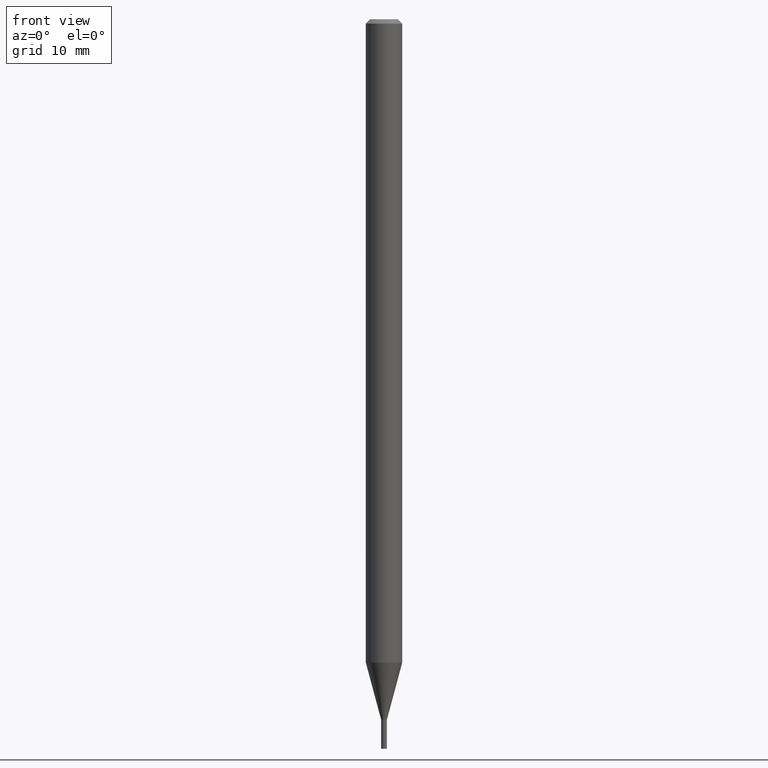
[diagram: clean part render]
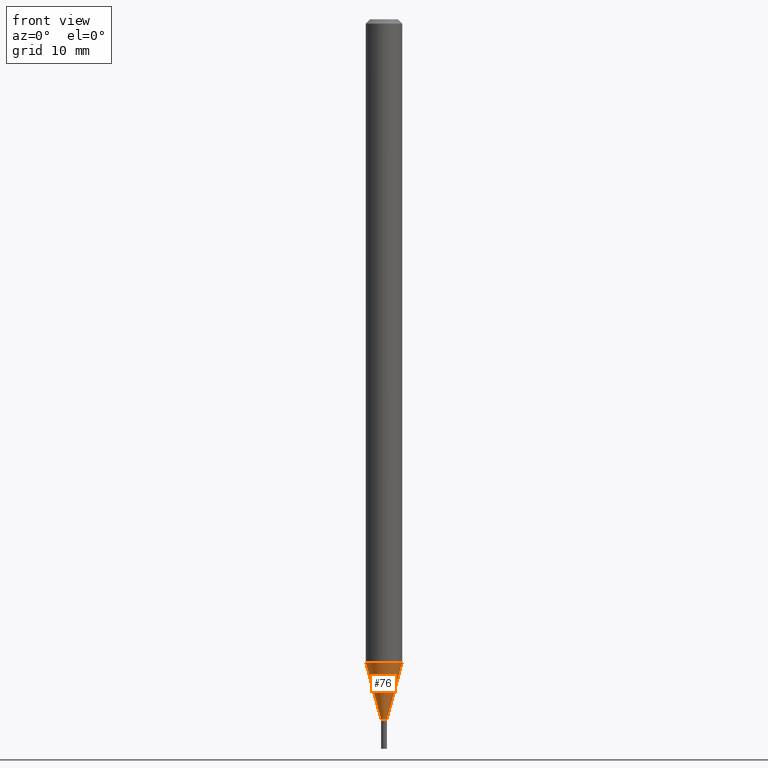
[diagram: same view with one face highlighted and labeled with its STEP entity id]
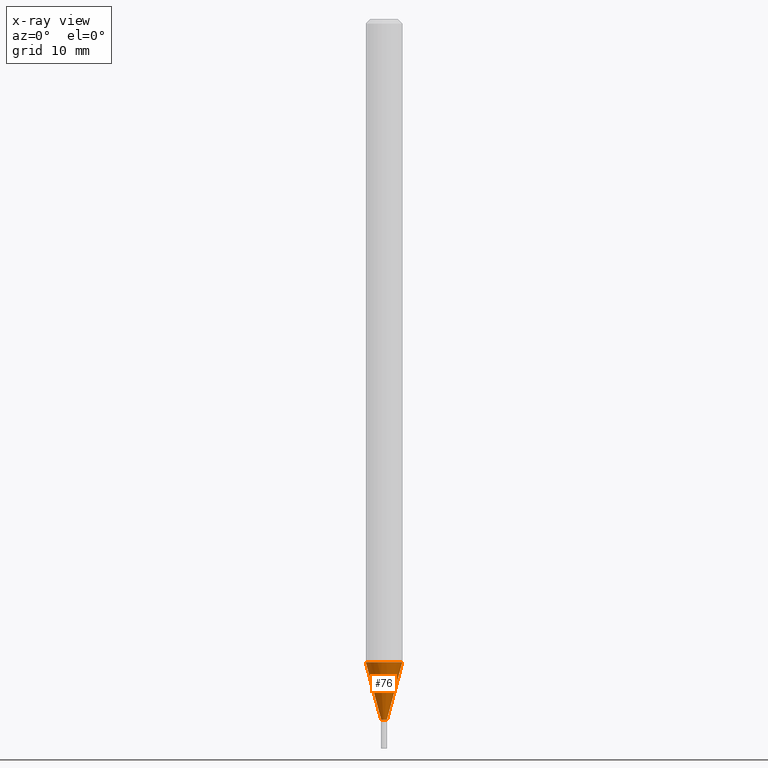
[diagram: x-ray of the same camera — body ghosted, the highlighted face saturated]
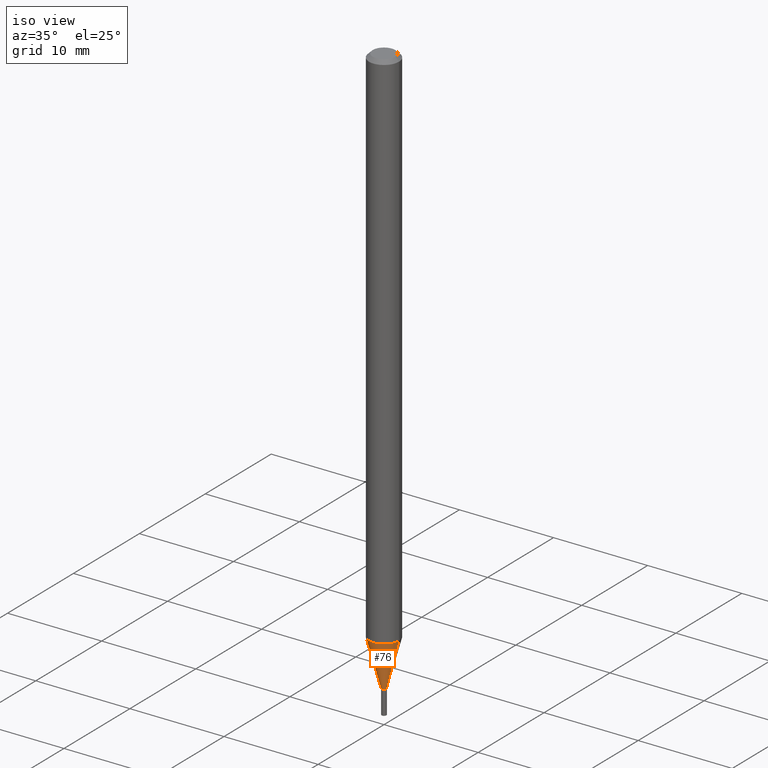
[diagram: same view with one face highlighted and labeled with its STEP entity id]
A machine part, front view. The second image highlights one B-rep face of the part: STEP entity #76.
The next image is the same camera in x-ray: the body ghosted, the highlighted face saturated — about 0% of this face is hidden behind the body in this view.
A second angle (iso view) of the same face is appended — the face is thin or edge-on in the first view.
In plain terms, the highlighted conical surface has half-angle 15 deg.
Its self-contained STEP definition (entity closure, byte-faithful):
#19 = VERTEX_POINT ( 'NONE', #200 ) ;
#29 = DIRECTION ( 'NONE',  ( 0.2588190451025214611, 1.565188264969621573E-15, 0.9659258262890682012 ) ) ;
#37 = CARTESIAN_POINT ( 'NONE',  ( 5.869125134844328281E-29, -8.379555213223550029E-15, -2.399999999999999911 ) ) ;
#40 = CARTESIAN_POINT ( 'NONE',  ( 0.06250000000000000000, -8.131895128691275373E-15, -2.204067332602633211 ) ) ;
#52 = VECTOR ( 'NONE', #29, 39.37007874015747433 ) ;
#59 = AXIS2_PLACEMENT_3D ( 'NONE', #37, #405, #187 ) ;
#69 = DIRECTION ( 'NONE',  ( -0.2588190451025214611, 5.211531920934551042E-15, 0.9659258262890682012 ) ) ;
#76 = ADVANCED_FACE ( 'NONE', ( #356 ), #243, .T. ) ;
#80 = EDGE_CURVE ( 'NONE', #394, #365, #325, .T. ) ;
#98 = VERTEX_POINT ( 'NONE', #40 ) ;
#117 = DIRECTION ( 'NONE',  ( -2.445468806185136597E-29, 3.491481338843145583E-15, 1.000000000000000000 ) ) ;
#135 = EDGE_CURVE ( 'NONE', #394, #19, #176, .T. ) ;
#138 = LINE ( 'NONE', #397, #52 ) ;
#139 = ORIENTED_EDGE ( 'NONE', *, *, #220, .F. ) ;
#170 = CARTESIAN_POINT ( 'NONE',  ( -0.06250000000000000000, -7.251370751485821088E-15, -2.204067332602633211 ) ) ;
#176 = CIRCLE ( 'NONE', #59, 0.009999999999999649794 ) ;
#187 = DIRECTION ( 'NONE',  ( 1.000000000000000000, -6.982962677686285643E-15, 0.000000000000000000 ) ) ;
#190 = CARTESIAN_POINT ( 'NONE',  ( 5.389977908611419802E-29, -7.695459961335882126E-15, -2.204067332602633211 ) ) ;
#192 = CIRCLE ( 'NONE', #291, 0.06250000000000000000 ) ;
#193 = ORIENTED_EDGE ( 'NONE', *, *, #80, .F. ) ;
#200 = CARTESIAN_POINT ( 'NONE',  ( 0.009999999999999649794, -8.449384840000410172E-15, -2.399999999999999911 ) ) ;
#204 = EDGE_LOOP ( 'NONE', ( #193, #409, #268, #139 ) ) ;
#220 = EDGE_CURVE ( 'NONE', #365, #98, #192, .T. ) ;
#243 = CONICAL_SURFACE ( 'NONE', #335, 0.009999999999999649794, 0.2617993877991501295 ) ;
#268 = ORIENTED_EDGE ( 'NONE', *, *, #345, .T. ) ;
#284 = DIRECTION ( 'NONE',  ( 1.000000000000000000, -6.982962677686285643E-15, 0.000000000000000000 ) ) ;
#287 = CARTESIAN_POINT ( 'NONE',  ( 5.869125134844328281E-29, -8.379555213223550029E-15, -2.399999999999999911 ) ) ;
#291 = AXIS2_PLACEMENT_3D ( 'NONE', #190, #117, #357 ) ;
#320 = CARTESIAN_POINT ( 'NONE',  ( -0.009999999999999649794, -7.779935845566682095E-15, -2.399999999999999911 ) ) ;
#325 = LINE ( 'NONE', #463, #355 ) ;
#335 = AXIS2_PLACEMENT_3D ( 'NONE', #287, #395, #284 ) ;
#345 = EDGE_CURVE ( 'NONE', #19, #98, #138, .T. ) ;
#355 = VECTOR ( 'NONE', #69, 39.37007874015747433 ) ;
#356 = FACE_OUTER_BOUND ( 'NONE', #204, .T. ) ;
#357 = DIRECTION ( 'NONE',  ( 1.000000000000000000, -6.982962677686262766E-15, 0.000000000000000000 ) ) ;
#365 = VERTEX_POINT ( 'NONE', #170 ) ;
#394 = VERTEX_POINT ( 'NONE', #320 ) ;
#395 = DIRECTION ( 'NONE',  ( -2.445468806185136597E-29, 3.491481338843145583E-15, 1.000000000000000000 ) ) ;
#397 = CARTESIAN_POINT ( 'NONE',  ( 0.009999999999999649794, -8.449384840000410172E-15, -2.399999999999999911 ) ) ;
#405 = DIRECTION ( 'NONE',  ( -2.445468806185136597E-29, 3.491481338843145583E-15, 1.000000000000000000 ) ) ;
#409 = ORIENTED_EDGE ( 'NONE', *, *, #135, .T. ) ;
#463 = CARTESIAN_POINT ( 'NONE',  ( -0.009999999999999649794, -8.308500939647543103E-15, -2.399999999999999911 ) ) ;